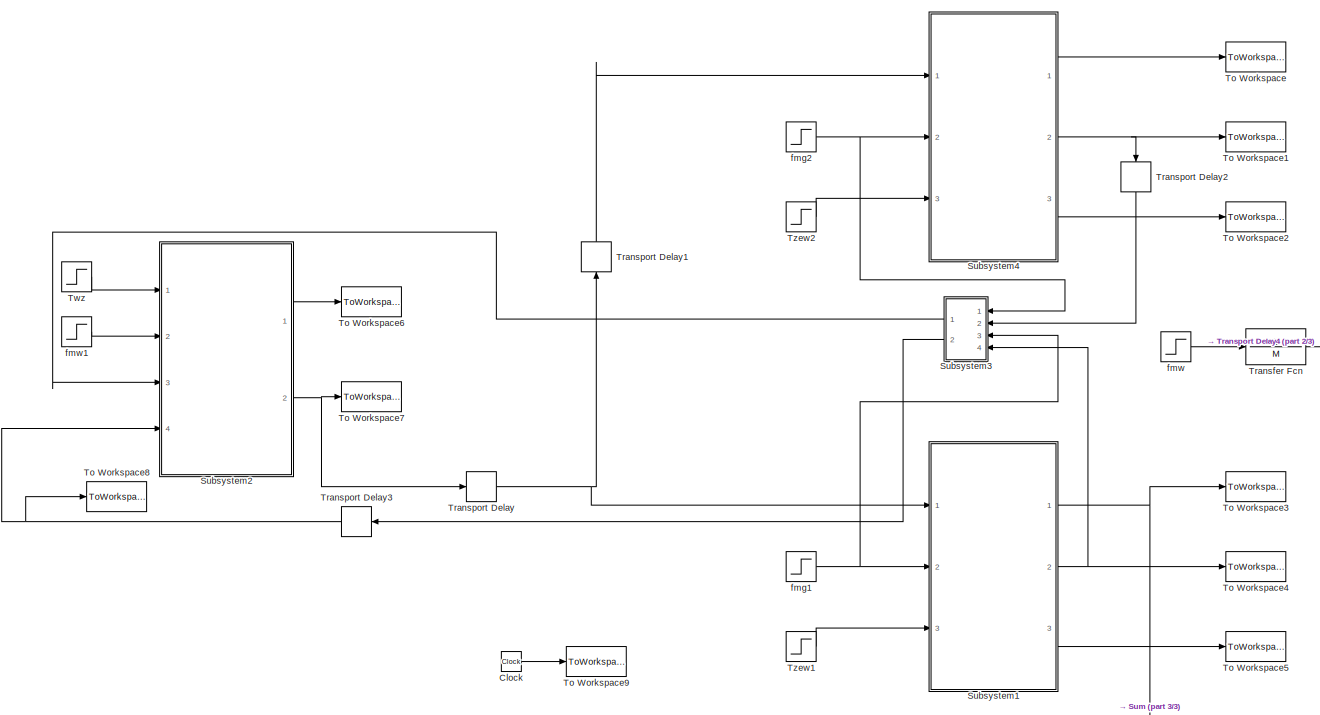
[diagram: root canvas - part 1/3, center side, full height]
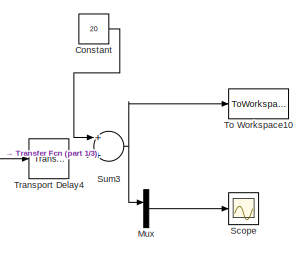
[diagram: root canvas - part 2/3, middle right region]
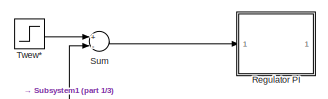
[diagram: root canvas - part 3/3, middle left region]
MODEL slx_71f6a13c43d8
KIND model
CONFIG AbsTol = auto
CONFIG EnableMultiTasking = off
CONFIG FixedStep = auto
CONFIG MaxStep = maxstepsize
CONFIG MinStep = auto
CONFIG RelTol = 1e-3
CONFIG SampleTimeConstraint = Unconstrained
CONFIG Solver = ode45
CONFIG SolverName = ode45
CONFIG StartTime = 0.0
CONFIG StopTime = 10.0
BLOCK [Clock] Clock
BLOCK [Constant] Constant
  Commented = on
  Value = 20
BLOCK [Mux] Mux
  Commented = on
  DisplayOption = bar
  Inputs = 2
  Ports = [2, 1]
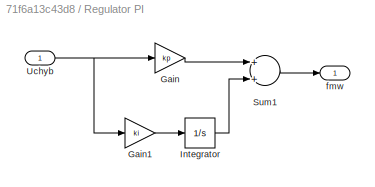
BLOCK [SubSystem] Regulator PI
  Commented = on
  Ports = [1, 1]
  RequestExecContextInheritance = off
BLOCK [Gain] Regulator PI/Gain
  Gain = kp
  OutDataTypeStr = Inherit: Inherit via internal rule
  ParamDataTypeStr = Inherit: Inherit via internal rule
  SaturateOnIntegerOverflow = off
BLOCK [Gain] Regulator PI/Gain1
  Gain = ki
  OutDataTypeStr = Inherit: Inherit via internal rule
  ParamDataTypeStr = Inherit: Inherit via internal rule
  SaturateOnIntegerOverflow = off
BLOCK [Integrator] Regulator PI/Integrator
  InitialCondition = fmw0
  Ports = [1, 1]
BLOCK [Sum] Regulator PI/Sum1
  InputSameDT = off
  OutDataTypeStr = Inherit: Inherit via internal rule
  Ports = [2, 1]
  SaturateOnIntegerOverflow = off
BLOCK [Inport] Regulator PI/Uchyb
  IconDisplay = Port number
BLOCK [Outport] Regulator PI/fmw
  IconDisplay = Port number
BLOCK [Scope] Scope
  Commented = on
  Floating = off
  NumInputPorts = 1
  Ports = [1]
  ScopeSpecificationString = Simulink.scopes.TimeScopeBlockCfg('CurrentConfiguration', extmgr.ConfigurationSet(extmgr.Configuration('Core','General UI',true),extmgr.Configuration('Core','Source UI',true),extmgr.Configuration('Sources','WiredSimulink',true,'DataLoggingLimitDataPoints',true,'DataLoggingSaveFormat','Array','DataLoggingDecimation','1','DataLoggingDecimateData',true),extmgr.Configuration('Visuals','Time Domain',tr...<+884ch>
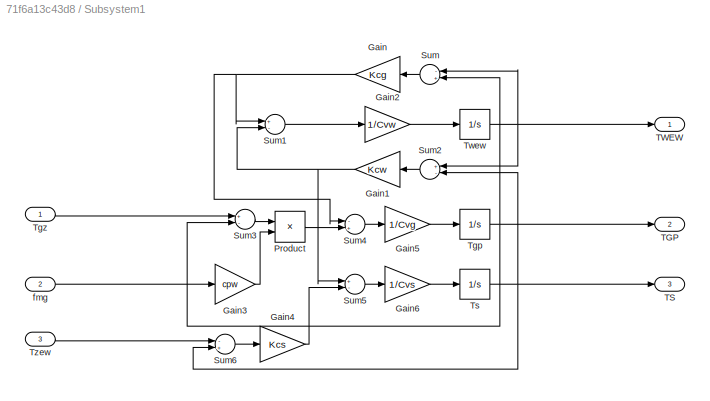
BLOCK [SubSystem] Subsystem1
  Ports = [3, 3]
  RequestExecContextInheritance = off
BLOCK [Gain] Subsystem1/Gain
  Gain = Kcg
  OutDataTypeStr = Inherit: Inherit via internal rule
  ParamDataTypeStr = Inherit: Inherit via internal rule
  SaturateOnIntegerOverflow = off
BLOCK [Gain] Subsystem1/Gain1
  Gain = Kcw
  OutDataTypeStr = Inherit: Inherit via internal rule
  ParamDataTypeStr = Inherit: Inherit via internal rule
  SaturateOnIntegerOverflow = off
BLOCK [Gain] Subsystem1/Gain2
  Gain = 1/Cvw
  OutDataTypeStr = Inherit: Inherit via internal rule
  ParamDataTypeStr = Inherit: Inherit via internal rule
  SaturateOnIntegerOverflow = off
BLOCK [Gain] Subsystem1/Gain3
  Gain = cpw
  OutDataTypeStr = Inherit: Inherit via internal rule
  ParamDataTypeStr = Inherit: Inherit via internal rule
  SaturateOnIntegerOverflow = off
BLOCK [Gain] Subsystem1/Gain4
  Gain = Kcs
  OutDataTypeStr = Inherit: Inherit via internal rule
  ParamDataTypeStr = Inherit: Inherit via internal rule
  SaturateOnIntegerOverflow = off
BLOCK [Gain] Subsystem1/Gain5
  Gain = 1/Cvg
  OutDataTypeStr = Inherit: Inherit via internal rule
  ParamDataTypeStr = Inherit: Inherit via internal rule
  SaturateOnIntegerOverflow = off
BLOCK [Gain] Subsystem1/Gain6
  Gain = 1/Cvs
  OutDataTypeStr = Inherit: Inherit via internal rule
  ParamDataTypeStr = Inherit: Inherit via internal rule
  SaturateOnIntegerOverflow = off
BLOCK [Product] Subsystem1/Product
  InputSameDT = off
  OutDataTypeStr = Inherit: Inherit via internal rule
  Ports = [2, 1]
  RndMeth = Floor
  SaturateOnIntegerOverflow = off
BLOCK [Sum] Subsystem1/Sum
  InputSameDT = off
  Inputs = -+
  OutDataTypeStr = Inherit: Inherit via internal rule
  Ports = [2, 1]
  SaturateOnIntegerOverflow = off
BLOCK [Sum] Subsystem1/Sum1
  InputSameDT = off
  Inputs = +-
  OutDataTypeStr = Inherit: Inherit via internal rule
  Ports = [2, 1]
  SaturateOnIntegerOverflow = off
BLOCK [Sum] Subsystem1/Sum2
  InputSameDT = off
  Inputs = +-
  OutDataTypeStr = Inherit: Inherit via internal rule
  Ports = [2, 1]
  SaturateOnIntegerOverflow = off
BLOCK [Sum] Subsystem1/Sum3
  InputSameDT = off
  Inputs = +-
  OutDataTypeStr = Inherit: Inherit via internal rule
  Ports = [2, 1]
  SaturateOnIntegerOverflow = off
BLOCK [Sum] Subsystem1/Sum4
  InputSameDT = off
  Inputs = -+
  OutDataTypeStr = Inherit: Inherit via internal rule
  Ports = [2, 1]
  SaturateOnIntegerOverflow = off
BLOCK [Sum] Subsystem1/Sum5
  InputSameDT = off
  Inputs = +-
  OutDataTypeStr = Inherit: Inherit via internal rule
  Ports = [2, 1]
  SaturateOnIntegerOverflow = off
BLOCK [Sum] Subsystem1/Sum6
  InputSameDT = off
  Inputs = -+
  OutDataTypeStr = Inherit: Inherit via internal rule
  Ports = [2, 1]
  SaturateOnIntegerOverflow = off
BLOCK [Outport] Subsystem1/TGP
  IconDisplay = Port number
  Port = 2
BLOCK [Outport] Subsystem1/TS
  IconDisplay = Port number
  Port = 3
BLOCK [Outport] Subsystem1/TWEW
  IconDisplay = Port number
BLOCK [Integrator] Subsystem1/Tgp
  InitialCondition = Tgp0
  Ports = [1, 1]
BLOCK [Inport] Subsystem1/Tgz
  IconDisplay = Port number
BLOCK [Integrator] Subsystem1/Ts
  InitialCondition = Ts0
  Ports = [1, 1]
BLOCK [Integrator] Subsystem1/Twew
  InitialCondition = Twew0
  Ports = [1, 1]
BLOCK [Inport] Subsystem1/Tzew
  IconDisplay = Port number
  Port = 3
BLOCK [Inport] Subsystem1/fmg
  IconDisplay = Port number
  Port = 2
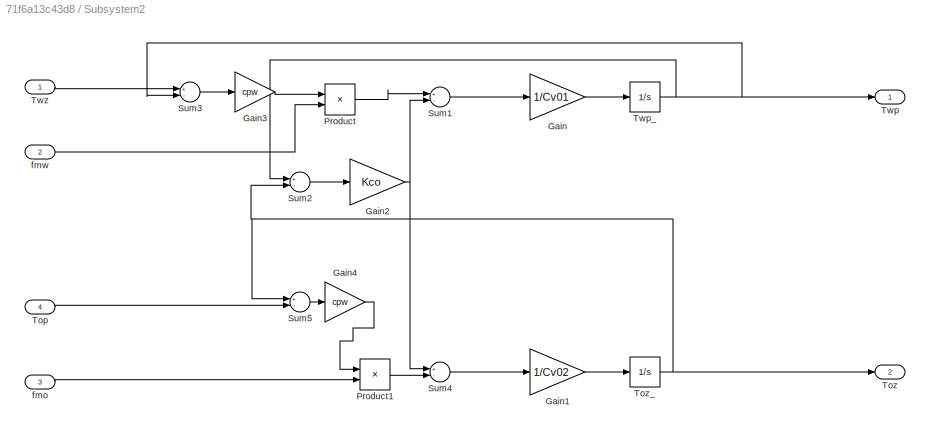
BLOCK [SubSystem] Subsystem2
  Ports = [4, 2]
  RequestExecContextInheritance = off
BLOCK [Gain] Subsystem2/Gain
  Gain = 1/Cv01
  OutDataTypeStr = Inherit: Inherit via internal rule
  ParamDataTypeStr = Inherit: Inherit via internal rule
  SaturateOnIntegerOverflow = off
BLOCK [Gain] Subsystem2/Gain1
  Gain = 1/Cv02
  OutDataTypeStr = Inherit: Inherit via internal rule
  ParamDataTypeStr = Inherit: Inherit via internal rule
  SaturateOnIntegerOverflow = off
BLOCK [Gain] Subsystem2/Gain2
  Gain = Kco
  OutDataTypeStr = Inherit: Inherit via internal rule
  ParamDataTypeStr = Inherit: Inherit via internal rule
  SaturateOnIntegerOverflow = off
BLOCK [Gain] Subsystem2/Gain3
  Gain = cpw
  OutDataTypeStr = Inherit: Inherit via internal rule
  ParamDataTypeStr = Inherit: Inherit via internal rule
  SaturateOnIntegerOverflow = off
BLOCK [Gain] Subsystem2/Gain4
  Gain = cpw
  OutDataTypeStr = Inherit: Inherit via internal rule
  ParamDataTypeStr = Inherit: Inherit via internal rule
  SaturateOnIntegerOverflow = off
BLOCK [Product] Subsystem2/Product
  InputSameDT = off
  OutDataTypeStr = Inherit: Inherit via internal rule
  Ports = [2, 1]
  RndMeth = Floor
  SaturateOnIntegerOverflow = off
BLOCK [Product] Subsystem2/Product1
  InputSameDT = off
  OutDataTypeStr = Inherit: Inherit via internal rule
  Ports = [2, 1]
  RndMeth = Floor
  SaturateOnIntegerOverflow = off
BLOCK [Sum] Subsystem2/Sum1
  InputSameDT = off
  Inputs = +-
  OutDataTypeStr = Inherit: Inherit via internal rule
  Ports = [2, 1]
  SaturateOnIntegerOverflow = off
BLOCK [Sum] Subsystem2/Sum2
  InputSameDT = off
  Inputs = +-
  OutDataTypeStr = Inherit: Inherit via internal rule
  Ports = [2, 1]
  SaturateOnIntegerOverflow = off
BLOCK [Sum] Subsystem2/Sum3
  InputSameDT = off
  Inputs = +-
  OutDataTypeStr = Inherit: Inherit via internal rule
  Ports = [2, 1]
  SaturateOnIntegerOverflow = off
BLOCK [Sum] Subsystem2/Sum4
  InputSameDT = off
  Inputs = +-
  OutDataTypeStr = Inherit: Inherit via internal rule
  Ports = [2, 1]
  SaturateOnIntegerOverflow = off
BLOCK [Sum] Subsystem2/Sum5
  InputSameDT = off
  Inputs = +-
  OutDataTypeStr = Inherit: Inherit via internal rule
  Ports = [2, 1]
  SaturateOnIntegerOverflow = off
BLOCK [Inport] Subsystem2/Top
  IconDisplay = Port number
  Port = 4
BLOCK [Outport] Subsystem2/Toz
  IconDisplay = Port number
  Port = 2
BLOCK [Integrator] Subsystem2/Toz_
  InitialCondition = Toz0
  Ports = [1, 1]
BLOCK [Outport] Subsystem2/Twp
  IconDisplay = Port number
BLOCK [Integrator] Subsystem2/Twp_
  InitialCondition = Twp0
  Ports = [1, 1]
BLOCK [Inport] Subsystem2/Twz
  IconDisplay = Port number
BLOCK [Inport] Subsystem2/fmo
  IconDisplay = Port number
  Port = 3
BLOCK [Inport] Subsystem2/fmw
  IconDisplay = Port number
  Port = 2
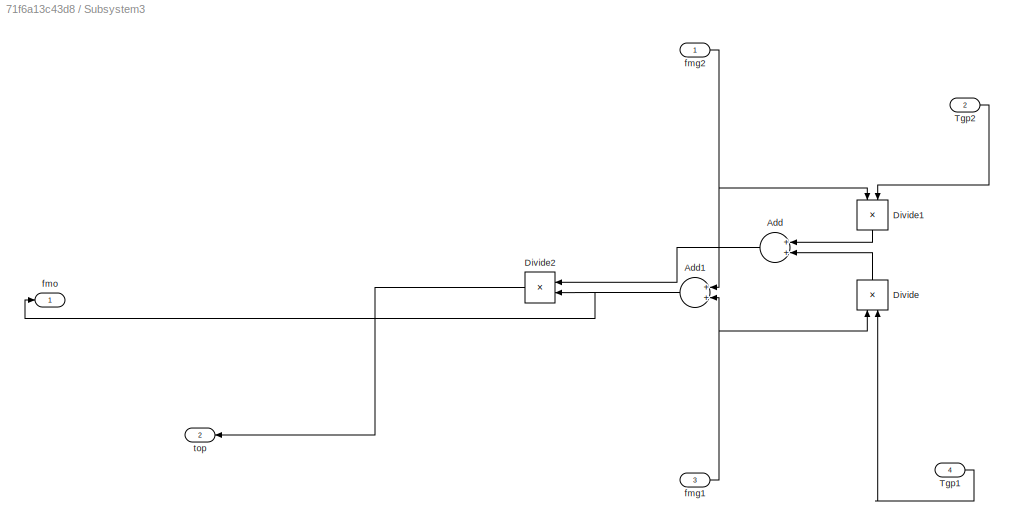
BLOCK [SubSystem] Subsystem3
  Ports = [4, 2]
  RequestExecContextInheritance = off
BLOCK [Sum] Subsystem3/Add
  InputSameDT = off
  OutDataTypeStr = Inherit: Inherit via internal rule
  Ports = [2, 1]
  SaturateOnIntegerOverflow = off
BLOCK [Sum] Subsystem3/Add1
  InputSameDT = off
  OutDataTypeStr = Inherit: Inherit via internal rule
  Ports = [2, 1]
  SaturateOnIntegerOverflow = off
BLOCK [Product] Subsystem3/Divide
  InputSameDT = off
  Inputs = **
  OutDataTypeStr = Inherit: Inherit via internal rule
  Ports = [2, 1]
  RndMeth = Floor
  SaturateOnIntegerOverflow = off
BLOCK [Product] Subsystem3/Divide1
  InputSameDT = off
  Inputs = **
  OutDataTypeStr = Inherit: Inherit via internal rule
  Ports = [2, 1]
  RndMeth = Floor
  SaturateOnIntegerOverflow = off
BLOCK [Product] Subsystem3/Divide2
  InputSameDT = off
  Inputs = */
  OutDataTypeStr = Inherit: Inherit via internal rule
  Ports = [2, 1]
  RndMeth = Floor
  SaturateOnIntegerOverflow = off
BLOCK [Inport] Subsystem3/Tgp1
  IconDisplay = Port number
  Port = 4
BLOCK [Inport] Subsystem3/Tgp2
  IconDisplay = Port number
  Port = 2
BLOCK [Inport] Subsystem3/fmg1
  IconDisplay = Port number
  Port = 3
BLOCK [Inport] Subsystem3/fmg2
  IconDisplay = Port number
BLOCK [Outport] Subsystem3/fmo
  IconDisplay = Port number
BLOCK [Outport] Subsystem3/top
  IconDisplay = Port number
  Port = 2
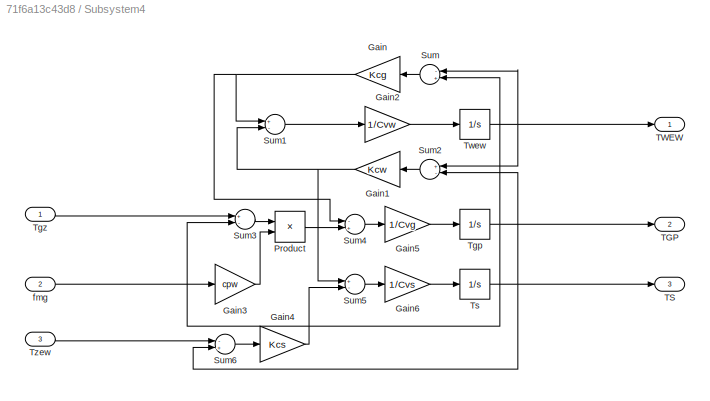
BLOCK [SubSystem] Subsystem4
  Ports = [3, 3]
  RequestExecContextInheritance = off
BLOCK [Gain] Subsystem4/Gain
  Gain = Kcg
  OutDataTypeStr = Inherit: Inherit via internal rule
  ParamDataTypeStr = Inherit: Inherit via internal rule
  SaturateOnIntegerOverflow = off
BLOCK [Gain] Subsystem4/Gain1
  Gain = Kcw
  OutDataTypeStr = Inherit: Inherit via internal rule
  ParamDataTypeStr = Inherit: Inherit via internal rule
  SaturateOnIntegerOverflow = off
BLOCK [Gain] Subsystem4/Gain2
  Gain = 1/Cvw
  OutDataTypeStr = Inherit: Inherit via internal rule
  ParamDataTypeStr = Inherit: Inherit via internal rule
  SaturateOnIntegerOverflow = off
BLOCK [Gain] Subsystem4/Gain3
  Gain = cpw
  OutDataTypeStr = Inherit: Inherit via internal rule
  ParamDataTypeStr = Inherit: Inherit via internal rule
  SaturateOnIntegerOverflow = off
BLOCK [Gain] Subsystem4/Gain4
  Gain = Kcs
  OutDataTypeStr = Inherit: Inherit via internal rule
  ParamDataTypeStr = Inherit: Inherit via internal rule
  SaturateOnIntegerOverflow = off
BLOCK [Gain] Subsystem4/Gain5
  Gain = 1/Cvg
  OutDataTypeStr = Inherit: Inherit via internal rule
  ParamDataTypeStr = Inherit: Inherit via internal rule
  SaturateOnIntegerOverflow = off
BLOCK [Gain] Subsystem4/Gain6
  Gain = 1/Cvs
  OutDataTypeStr = Inherit: Inherit via internal rule
  ParamDataTypeStr = Inherit: Inherit via internal rule
  SaturateOnIntegerOverflow = off
BLOCK [Product] Subsystem4/Product
  InputSameDT = off
  OutDataTypeStr = Inherit: Inherit via internal rule
  Ports = [2, 1]
  RndMeth = Floor
  SaturateOnIntegerOverflow = off
BLOCK [Sum] Subsystem4/Sum
  InputSameDT = off
  Inputs = -+
  OutDataTypeStr = Inherit: Inherit via internal rule
  Ports = [2, 1]
  SaturateOnIntegerOverflow = off
BLOCK [Sum] Subsystem4/Sum1
  InputSameDT = off
  Inputs = +-
  OutDataTypeStr = Inherit: Inherit via internal rule
  Ports = [2, 1]
  SaturateOnIntegerOverflow = off
BLOCK [Sum] Subsystem4/Sum2
  InputSameDT = off
  Inputs = +-
  OutDataTypeStr = Inherit: Inherit via internal rule
  Ports = [2, 1]
  SaturateOnIntegerOverflow = off
BLOCK [Sum] Subsystem4/Sum3
  InputSameDT = off
  Inputs = +-
  OutDataTypeStr = Inherit: Inherit via internal rule
  Ports = [2, 1]
  SaturateOnIntegerOverflow = off
BLOCK [Sum] Subsystem4/Sum4
  InputSameDT = off
  Inputs = -+
  OutDataTypeStr = Inherit: Inherit via internal rule
  Ports = [2, 1]
  SaturateOnIntegerOverflow = off
BLOCK [Sum] Subsystem4/Sum5
  InputSameDT = off
  Inputs = +-
  OutDataTypeStr = Inherit: Inherit via internal rule
  Ports = [2, 1]
  SaturateOnIntegerOverflow = off
BLOCK [Sum] Subsystem4/Sum6
  InputSameDT = off
  Inputs = -+
  OutDataTypeStr = Inherit: Inherit via internal rule
  Ports = [2, 1]
  SaturateOnIntegerOverflow = off
BLOCK [Outport] Subsystem4/TGP
  IconDisplay = Port number
  Port = 2
BLOCK [Outport] Subsystem4/TS
  IconDisplay = Port number
  Port = 3
BLOCK [Outport] Subsystem4/TWEW
  IconDisplay = Port number
BLOCK [Integrator] Subsystem4/Tgp
  InitialCondition = Tgp0
  Ports = [1, 1]
BLOCK [Inport] Subsystem4/Tgz
  IconDisplay = Port number
BLOCK [Integrator] Subsystem4/Ts
  InitialCondition = Ts0
  Ports = [1, 1]
BLOCK [Integrator] Subsystem4/Twew
  InitialCondition = Twew0
  Ports = [1, 1]
BLOCK [Inport] Subsystem4/Tzew
  IconDisplay = Port number
  Port = 3
BLOCK [Inport] Subsystem4/fmg
  IconDisplay = Port number
  Port = 2
BLOCK [Sum] Sum
  Commented = on
  InputSameDT = off
  Inputs = +-
  OutDataTypeStr = Inherit: Inherit via internal rule
  Ports = [2, 1]
  SaturateOnIntegerOverflow = off
BLOCK [Sum] Sum3
  Commented = on
  InputSameDT = off
  OutDataTypeStr = Inherit: Inherit via internal rule
  Ports = [2, 1]
  SaturateOnIntegerOverflow = off
BLOCK [ToWorkspace] To Workspace
  MaxDataPoints = inf
  Ports = [1]
  SampleTime = -1
  VariableName = Twew2
BLOCK [ToWorkspace] To Workspace1
  MaxDataPoints = inf
  Ports = [1]
  SampleTime = -1
  VariableName = Tgp2
BLOCK [ToWorkspace] To Workspace10
  Commented = on
  MaxDataPoints = inf
  Ports = [1]
  SampleTime = -1
  VariableName = Twew
BLOCK [ToWorkspace] To Workspace2
  MaxDataPoints = inf
  Ports = [1]
  SampleTime = -1
  VariableName = Ts2
BLOCK [ToWorkspace] To Workspace3
  MaxDataPoints = inf
  Ports = [1]
  SampleTime = -1
  VariableName = Twew1
BLOCK [ToWorkspace] To Workspace4
  MaxDataPoints = inf
  Ports = [1]
  SampleTime = -1
  VariableName = Tgp1
BLOCK [ToWorkspace] To Workspace5
  MaxDataPoints = inf
  Ports = [1]
  SampleTime = -1
  VariableName = Ts1
BLOCK [ToWorkspace] To Workspace6
  MaxDataPoints = inf
  Ports = [1]
  SampleTime = -1
  VariableName = Twp
BLOCK [ToWorkspace] To Workspace7
  MaxDataPoints = inf
  Ports = [1]
  SampleTime = -1
  VariableName = Toz
BLOCK [ToWorkspace] To Workspace8
  MaxDataPoints = inf
  Ports = [1]
  SampleTime = -1
  VariableName = Top
BLOCK [ToWorkspace] To Workspace9
  FixptAsFi = on
  MaxDataPoints = inf
  Ports = [1]
  SampleTime = -1
  VariableName = t
BLOCK [TransferFcn] Transfer Fcn
  Commented = on
  Denominator = M
  Numerator = L
BLOCK [TransportDelay] Transport Delay
  BufferSize = 10000
  DelayTime = Tdelay1
  InitialOutput = Toz0
  Ports = [1, 1]
BLOCK [TransportDelay] Transport Delay1
  BufferSize = 10000
  DelayTime = Tdelay2
  InitialOutput = Toz0
  Ports = [1, 1]
BLOCK [TransportDelay] Transport Delay2
  BufferSize = 10000
  DelayTime = Tdelay2
  InitialOutput = Tgp2_0
  Ports = [1, 1]
BLOCK [TransportDelay] Transport Delay3
  BufferSize = 10000
  DelayTime = Tdelay1
  InitialOutput = (Tgp1_0*fmg1_0+Tgp2_0*fmg2_0)/(fmg1_0+fmg2_0)
  Ports = [1, 1]
BLOCK [TransportDelay] Transport Delay4
  Commented = on
  DelayTime = T30
  Ports = [1, 1]
BLOCK [Step] Twew*
  After = Twew1_0+dTwew1_0
  Before = Twew1_0
  Commented = on
  SampleTime = 0
  Time = steptime
BLOCK [Step] Twz
  After = Twz0+dTwz
  Before = Twz0
  SampleTime = 0
  Time = steptime
BLOCK [Step] Tzew1
  After = Tzew0+dTzew
  Before = Tzew0
  SampleTime = 0
  Time = steptime
BLOCK [Step] Tzew2
  After = Tzew0+dTzew
  Before = Tzew0
  SampleTime = 0
  Time = steptime
BLOCK [Step] fmg1
  After = fmg1_0
  Before = fmg1_0
  SampleTime = 0
  Time = steptime
BLOCK [Step] fmg2
  After = fmg2_0
  Before = fmg2_0
  SampleTime = 0
  Time = steptime
BLOCK [Step] fmw
  After = 0+dfmw
  Commented = on
  SampleTime = 0
  Time = steptime
BLOCK [Step] fmw1
  After = fmw0+dfmw
  Before = fmw0
  SampleTime = 0
  Time = steptime
LINE Clock:1 -> To Workspace9:1
LINE Constant:1 -> Sum3:1
LINE Mux:1 -> Scope:1
LINE Regulator PI/Gain1:1 -> Regulator PI/Integrator:1
LINE Regulator PI/Gain:1 -> Regulator PI/Sum1:1
LINE Regulator PI/Integrator:1 -> Regulator PI/Sum1:2
LINE Regulator PI/Sum1:1 -> Regulator PI/fmw:1
NET Regulator PI/Uchyb:1 -> Regulator PI/Gain1:1, Regulator PI/Gain:1
NET Subsystem1/Gain1:1 -> Subsystem1/Sum1:2, Subsystem1/Sum5:1
LINE Subsystem1/Gain2:1 -> Subsystem1/Twew:1
LINE Subsystem1/Gain3:1 -> Subsystem1/Product:2
LINE Subsystem1/Gain4:1 -> Subsystem1/Sum5:2
LINE Subsystem1/Gain5:1 -> Subsystem1/Tgp:1
LINE Subsystem1/Gain6:1 -> Subsystem1/Ts:1
NET Subsystem1/Gain:1 -> Subsystem1/Sum1:1, Subsystem1/Sum4:1
LINE Subsystem1/Product:1 -> Subsystem1/Sum4:2
LINE Subsystem1/Sum1:1 -> Subsystem1/Gain2:1
LINE Subsystem1/Sum2:1 -> Subsystem1/Gain1:1
LINE Subsystem1/Sum3:1 -> Subsystem1/Product:1
LINE Subsystem1/Sum4:1 -> Subsystem1/Gain5:1
LINE Subsystem1/Sum5:1 -> Subsystem1/Gain6:1
LINE Subsystem1/Sum6:1 -> Subsystem1/Gain4:1
LINE Subsystem1/Sum:1 -> Subsystem1/Gain:1
NET Subsystem1/Tgp:1 -> Subsystem1/Sum3:2, Subsystem1/Sum:2, Subsystem1/TGP:1
LINE Subsystem1/Tgz:1 -> Subsystem1/Sum3:1
NET Subsystem1/Ts:1 -> Subsystem1/Sum2:2, Subsystem1/Sum6:2, Subsystem1/TS:1
NET Subsystem1/Twew:1 -> Subsystem1/Sum2:1, Subsystem1/Sum:1, Subsystem1/TWEW:1
LINE Subsystem1/Tzew:1 -> Subsystem1/Sum6:1
LINE Subsystem1/fmg:1 -> Subsystem1/Gain3:1
NET Subsystem1:1 -> Sum:2, To Workspace3:1
NET Subsystem1:2 -> Subsystem3:4, To Workspace4:1
LINE Subsystem1:3 -> To Workspace5:1
LINE Subsystem2/Gain1:1 -> Subsystem2/Toz_:1
NET Subsystem2/Gain2:1 -> Subsystem2/Sum1:2, Subsystem2/Sum4:1
LINE Subsystem2/Gain3:1 -> Subsystem2/Product:1
LINE Subsystem2/Gain4:1 -> Subsystem2/Product1:1
LINE Subsystem2/Gain:1 -> Subsystem2/Twp_:1
LINE Subsystem2/Product1:1 -> Subsystem2/Sum4:2
LINE Subsystem2/Product:1 -> Subsystem2/Sum1:1
LINE Subsystem2/Sum1:1 -> Subsystem2/Gain:1
LINE Subsystem2/Sum2:1 -> Subsystem2/Gain2:1
LINE Subsystem2/Sum3:1 -> Subsystem2/Gain3:1
LINE Subsystem2/Sum4:1 -> Subsystem2/Gain1:1
LINE Subsystem2/Sum5:1 -> Subsystem2/Gain4:1
LINE Subsystem2/Top:1 -> Subsystem2/Sum5:2
NET Subsystem2/Toz_:1 -> Subsystem2/Sum2:2, Subsystem2/Sum5:1, Subsystem2/Toz:1
NET Subsystem2/Twp_:1 -> Subsystem2/Sum2:1, Subsystem2/Sum3:2, Subsystem2/Twp:1
LINE Subsystem2/Twz:1 -> Subsystem2/Sum3:1
LINE Subsystem2/fmo:1 -> Subsystem2/Product1:2
LINE Subsystem2/fmw:1 -> Subsystem2/Product:2
LINE Subsystem2:1 -> To Workspace6:1
NET Subsystem2:2 -> To Workspace7:1, Transport Delay:1
NET Subsystem3/Add1:1 -> Subsystem3/Divide2:2, Subsystem3/fmo:1
LINE Subsystem3/Add:1 -> Subsystem3/Divide2:1
LINE Subsystem3/Divide1:1 -> Subsystem3/Add:1
LINE Subsystem3/Divide2:1 -> Subsystem3/top:1
LINE Subsystem3/Divide:1 -> Subsystem3/Add:2
LINE Subsystem3/Tgp1:1 -> Subsystem3/Divide:2
LINE Subsystem3/Tgp2:1 -> Subsystem3/Divide1:2
NET Subsystem3/fmg1:1 -> Subsystem3/Add1:2, Subsystem3/Divide:1
NET Subsystem3/fmg2:1 -> Subsystem3/Add1:1, Subsystem3/Divide1:1
LINE Subsystem3:1 -> Subsystem2:3
LINE Subsystem3:2 -> Transport Delay3:1
NET Subsystem4/Gain1:1 -> Subsystem4/Sum1:2, Subsystem4/Sum5:1
LINE Subsystem4/Gain2:1 -> Subsystem4/Twew:1
LINE Subsystem4/Gain3:1 -> Subsystem4/Product:2
LINE Subsystem4/Gain4:1 -> Subsystem4/Sum5:2
LINE Subsystem4/Gain5:1 -> Subsystem4/Tgp:1
LINE Subsystem4/Gain6:1 -> Subsystem4/Ts:1
NET Subsystem4/Gain:1 -> Subsystem4/Sum1:1, Subsystem4/Sum4:1
LINE Subsystem4/Product:1 -> Subsystem4/Sum4:2
LINE Subsystem4/Sum1:1 -> Subsystem4/Gain2:1
LINE Subsystem4/Sum2:1 -> Subsystem4/Gain1:1
LINE Subsystem4/Sum3:1 -> Subsystem4/Product:1
LINE Subsystem4/Sum4:1 -> Subsystem4/Gain5:1
LINE Subsystem4/Sum5:1 -> Subsystem4/Gain6:1
LINE Subsystem4/Sum6:1 -> Subsystem4/Gain4:1
LINE Subsystem4/Sum:1 -> Subsystem4/Gain:1
NET Subsystem4/Tgp:1 -> Subsystem4/Sum3:2, Subsystem4/Sum:2, Subsystem4/TGP:1
LINE Subsystem4/Tgz:1 -> Subsystem4/Sum3:1
NET Subsystem4/Ts:1 -> Subsystem4/Sum2:2, Subsystem4/Sum6:2, Subsystem4/TS:1
NET Subsystem4/Twew:1 -> Subsystem4/Sum2:1, Subsystem4/Sum:1, Subsystem4/TWEW:1
LINE Subsystem4/Tzew:1 -> Subsystem4/Sum6:1
LINE Subsystem4/fmg:1 -> Subsystem4/Gain3:1
LINE Subsystem4:1 -> To Workspace:1
NET Subsystem4:2 -> To Workspace1:1, Transport Delay2:1
LINE Subsystem4:3 -> To Workspace2:1
NET Sum3:1 -> Mux:1, To Workspace10:1
LINE Sum:1 -> Regulator PI:1
LINE Transfer Fcn:1 -> Transport Delay4:1
LINE Transport Delay1:1 -> Subsystem4:1
LINE Transport Delay2:1 -> Subsystem3:2
NET Transport Delay3:1 -> Subsystem2:4, To Workspace8:1
LINE Transport Delay4:1 -> Sum3:2
NET Transport Delay:1 -> Subsystem1:1, Transport Delay1:1
LINE Twew*:1 -> Sum:1
LINE Twz:1 -> Subsystem2:1
LINE Tzew1:1 -> Subsystem1:3
LINE Tzew2:1 -> Subsystem4:3
NET fmg1:1 -> Subsystem1:2, Subsystem3:3
NET fmg2:1 -> Subsystem3:1, Subsystem4:2
LINE fmw1:1 -> Subsystem2:2
LINE fmw:1 -> Transfer Fcn:1
note: NET lines group one-source signal fan-out (src -> all destinations, sorted); 1:1 wires keep LINE
